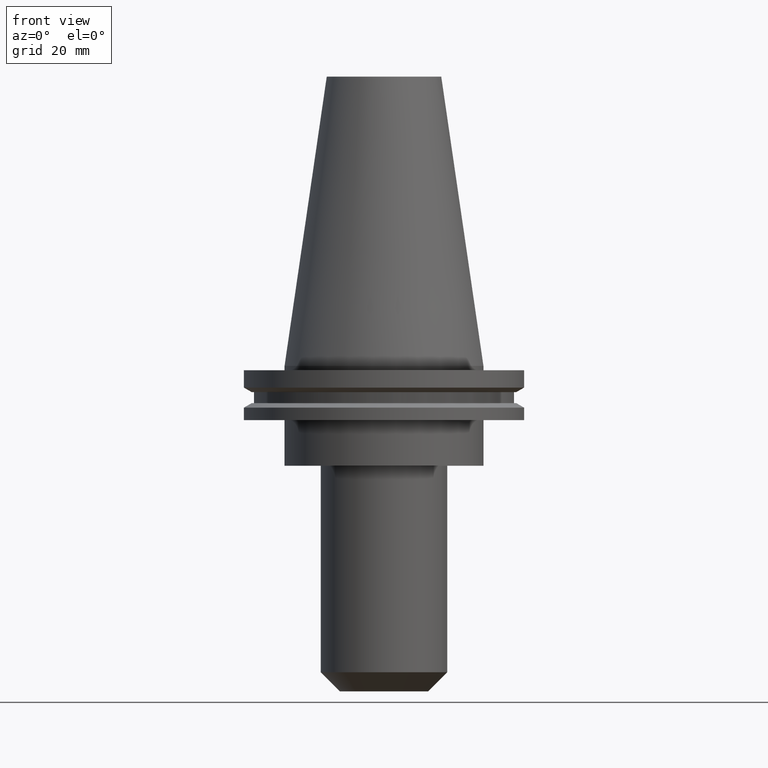
[diagram: clean part render]
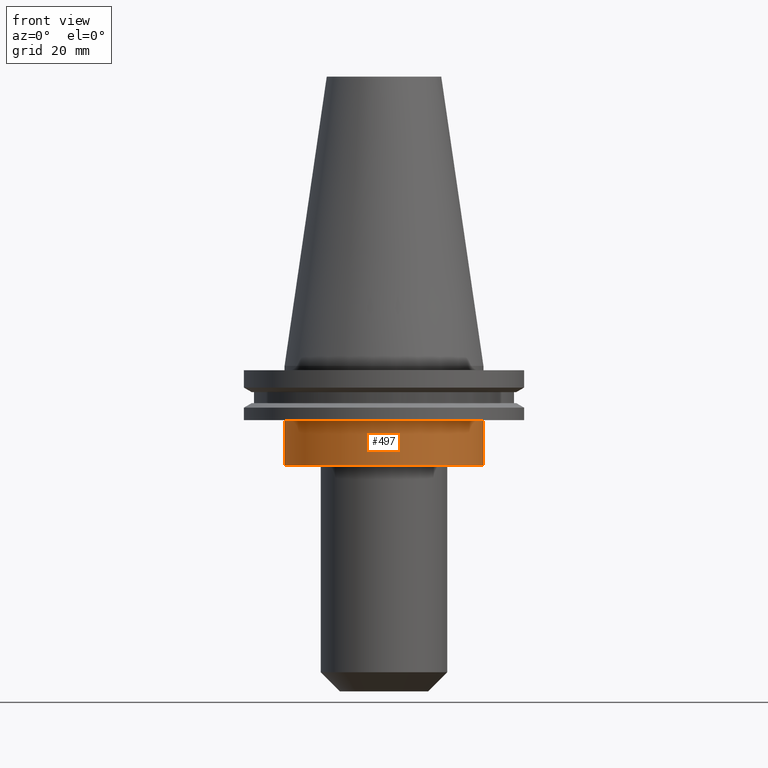
[diagram: same view with one face highlighted and labeled with its STEP entity id]
A machine part, front view. The second image highlights one B-rep face of the part: STEP entity #497.
In plain terms, the highlighted cylindrical surface (partial cylindrical patch) has radius 34.925 mm, axis along (-0, -0, 1).
Its self-contained STEP definition (entity closure, byte-faithful):
#17 = EDGE_CURVE ( 'NONE', #128, #108, #464, .T. ) ;
#62 = DIRECTION ( 'NONE',  ( -0.000000000000000000, -0.000000000000000000, 1.000000000000000000 ) ) ;
#108 = VERTEX_POINT ( 'NONE', #532 ) ;
#128 = VERTEX_POINT ( 'NONE', #784 ) ;
#131 = AXIS2_PLACEMENT_3D ( 'NONE', #849, #654, #266 ) ;
#134 = VERTEX_POINT ( 'NONE', #191 ) ;
#161 = AXIS2_PLACEMENT_3D ( 'NONE', #855, #380, #644 ) ;
#191 = CARTESIAN_POINT ( 'NONE',  ( 34.92499999999999716, 0.000000000000000000, -35.04999999999999716 ) ) ;
#193 = CARTESIAN_POINT ( 'NONE',  ( 0.000000000000000000, 0.000000000000000000, -35.04999999999999716 ) ) ;
#200 = CARTESIAN_POINT ( 'NONE',  ( 34.92499999999999716, 0.000000000000000000, -19.04999999999999716 ) ) ;
#256 = CARTESIAN_POINT ( 'NONE',  ( 34.92499999999999716, 0.000000000000000000, 101.5999999999999943 ) ) ;
#260 = CIRCLE ( 'NONE', #824, 34.92499999999999716 ) ;
#266 = DIRECTION ( 'NONE',  ( 1.000000000000000000, 0.000000000000000000, 0.000000000000000000 ) ) ;
#324 = FACE_OUTER_BOUND ( 'NONE', #420, .T. ) ;
#332 = VECTOR ( 'NONE', #592, 1000.000000000000000 ) ;
#358 = ORIENTED_EDGE ( 'NONE', *, *, #540, .F. ) ;
#380 = DIRECTION ( 'NONE',  ( -0.000000000000000000, -0.000000000000000000, 1.000000000000000000 ) ) ;
#420 = EDGE_LOOP ( 'NONE', ( #428, #764, #722, #358 ) ) ;
#428 = ORIENTED_EDGE ( 'NONE', *, *, #17, .F. ) ;
#432 = VERTEX_POINT ( 'NONE', #200 ) ;
#463 = EDGE_CURVE ( 'NONE', #128, #134, #260, .T. ) ;
#464 = LINE ( 'NONE', #595, #332 ) ;
#497 = ADVANCED_FACE ( 'NONE', ( #324 ), #714, .T. ) ;
#512 = EDGE_CURVE ( 'NONE', #134, #432, #526, .T. ) ;
#514 = DIRECTION ( 'NONE',  ( -0.000000000000000000, -0.000000000000000000, 1.000000000000000000 ) ) ;
#526 = LINE ( 'NONE', #256, #563 ) ;
#532 = CARTESIAN_POINT ( 'NONE',  ( -34.92499999999999716, 4.277078946022130887E-15, -19.04999999999999716 ) ) ;
#540 = EDGE_CURVE ( 'NONE', #108, #432, #585, .T. ) ;
#563 = VECTOR ( 'NONE', #514, 1000.000000000000000 ) ;
#585 = CIRCLE ( 'NONE', #161, 34.92499999999999716 ) ;
#592 = DIRECTION ( 'NONE',  ( -0.000000000000000000, -0.000000000000000000, 1.000000000000000000 ) ) ;
#595 = CARTESIAN_POINT ( 'NONE',  ( -34.92499999999999716, 4.277078946022130887E-15, 101.5999999999999943 ) ) ;
#644 = DIRECTION ( 'NONE',  ( 1.000000000000000000, 0.000000000000000000, 0.000000000000000000 ) ) ;
#654 = DIRECTION ( 'NONE',  ( -0.000000000000000000, -0.000000000000000000, 1.000000000000000000 ) ) ;
#714 = CYLINDRICAL_SURFACE ( 'NONE', #131, 34.92499999999999716 ) ;
#722 = ORIENTED_EDGE ( 'NONE', *, *, #512, .T. ) ;
#764 = ORIENTED_EDGE ( 'NONE', *, *, #463, .T. ) ;
#784 = CARTESIAN_POINT ( 'NONE',  ( -34.92499999999999716, 4.277078946022130887E-15, -35.04999999999999716 ) ) ;
#824 = AXIS2_PLACEMENT_3D ( 'NONE', #193, #62, #843 ) ;
#843 = DIRECTION ( 'NONE',  ( 1.000000000000000000, 0.000000000000000000, 0.000000000000000000 ) ) ;
#849 = CARTESIAN_POINT ( 'NONE',  ( 0.000000000000000000, 0.000000000000000000, 101.5999999999999943 ) ) ;
#855 = CARTESIAN_POINT ( 'NONE',  ( 0.000000000000000000, 0.000000000000000000, -19.04999999999999716 ) ) ;